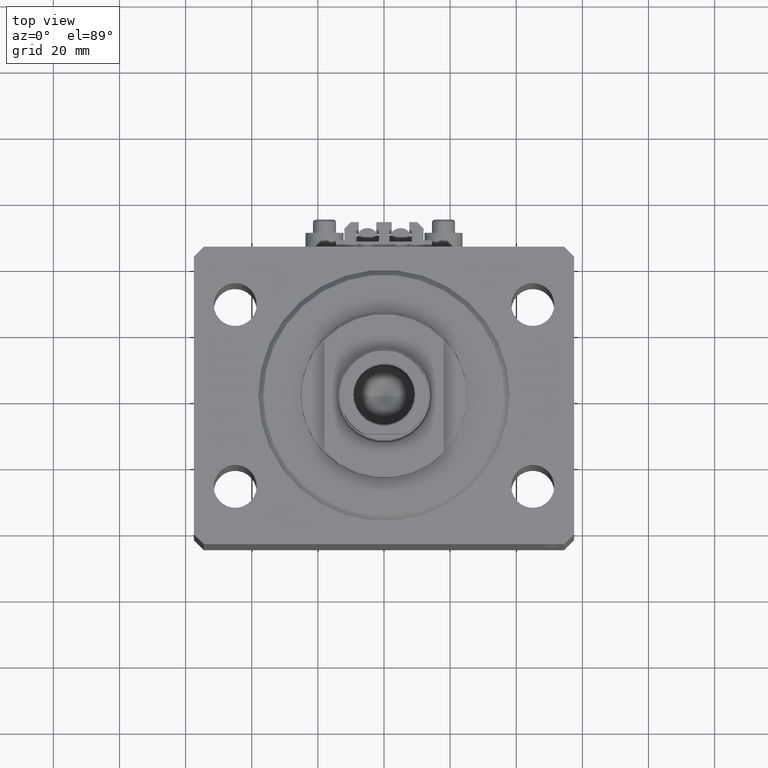
[diagram: clean part render]
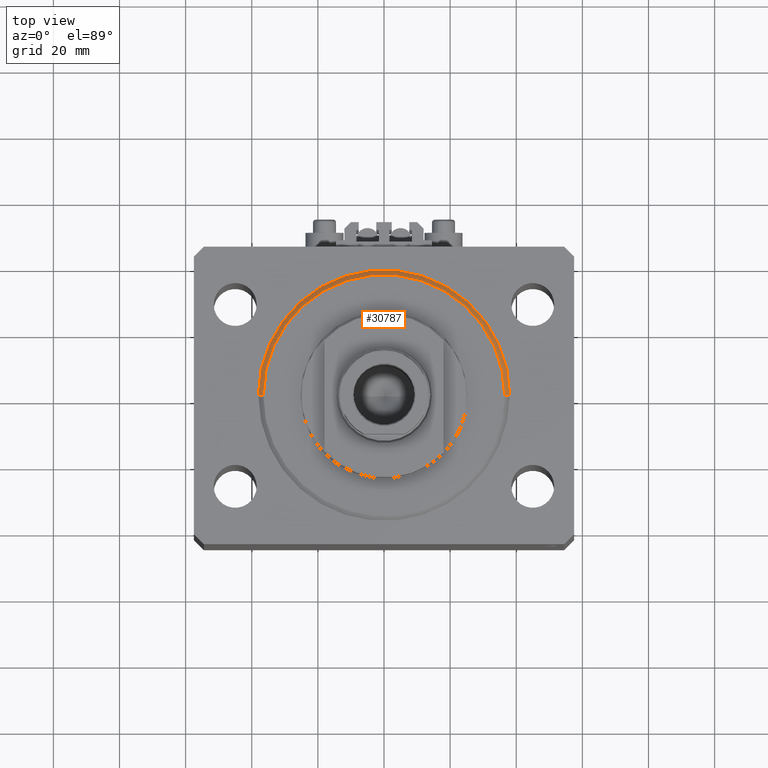
[diagram: same view with one face highlighted and labeled with its STEP entity id]
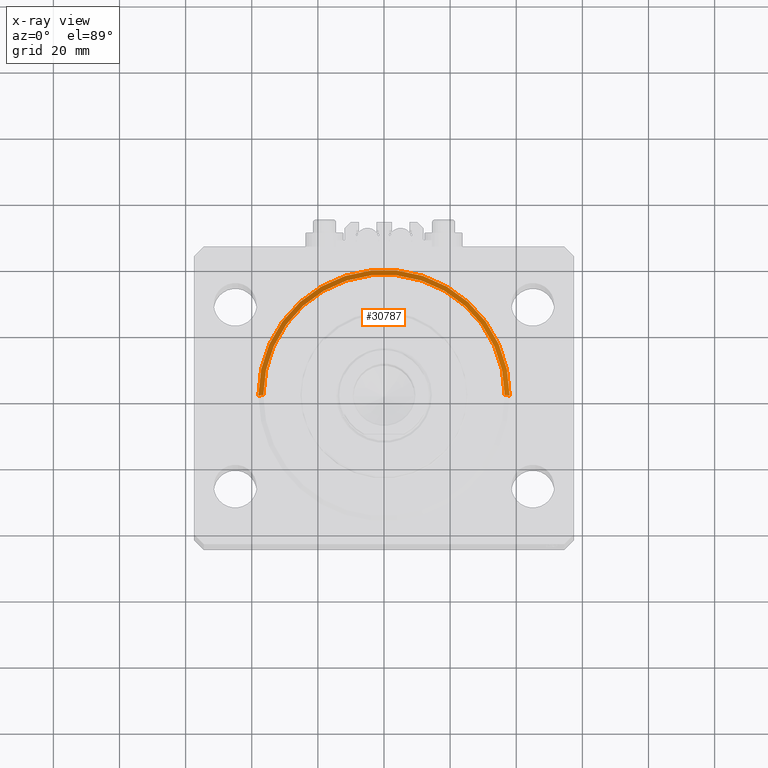
[diagram: x-ray of the same camera — body ghosted, the highlighted face saturated]
A machine part, top view. The second image highlights one B-rep face of the part: STEP entity #30787.
The next image is the same camera in x-ray: the body ghosted, the highlighted face saturated — about 0% of this face is hidden behind the body in this view.
In plain terms, the highlighted conical surface has half-angle 45 deg.
Its self-contained STEP definition (entity closure, byte-faithful):
#119 = ORIENTED_EDGE ( 'NONE', *, *, #35915, .F. ) ;
#1730 = DIRECTION ( 'NONE',  ( 1.000000000000000000, 0.000000000000000000, 0.000000000000000000 ) ) ;
#2541 = VECTOR ( 'NONE', #7786, 1000.000000000000114 ) ;
#2602 = VERTEX_POINT ( 'NONE', #3045 ) ;
#2927 = VERTEX_POINT ( 'NONE', #26331 ) ;
#3045 = CARTESIAN_POINT ( 'NONE',  ( -38.00000000000000000, 0.000000000000000000, 1.499999999999994449 ) ) ;
#3762 = DIRECTION ( 'NONE',  ( 1.000000000000000000, 0.000000000000000000, 0.000000000000000000 ) ) ;
#4466 = CARTESIAN_POINT ( 'NONE',  ( 36.50000000000000000, 0.000000000000000000, 0.000000000000000000 ) ) ;
#7786 = DIRECTION ( 'NONE',  ( -0.7071067811865491270, 8.659560562354953812E-17, 0.7071067811865459074 ) ) ;
#9042 = LINE ( 'NONE', #23885, #21356 ) ;
#9096 = DIRECTION ( 'NONE',  ( 1.000000000000000000, 0.000000000000000000, 0.000000000000000000 ) ) ;
#10408 = EDGE_CURVE ( 'NONE', #39826, #2602, #33163, .T. ) ;
#12166 = AXIS2_PLACEMENT_3D ( 'NONE', #22972, #26621, #3762 ) ;
#12694 = DIRECTION ( 'NONE',  ( -0.000000000000000000, -0.000000000000000000, 1.000000000000000000 ) ) ;
#13207 = CARTESIAN_POINT ( 'NONE',  ( 0.000000000000000000, 0.000000000000000000, 0.000000000000000000 ) ) ;
#14835 = CARTESIAN_POINT ( 'NONE',  ( 38.00000000000000000, 4.653657836759941941E-15, 1.499999999999994449 ) ) ;
#20669 = ORIENTED_EDGE ( 'NONE', *, *, #10408, .F. ) ;
#21032 = CIRCLE ( 'NONE', #38946, 36.50000000000000000 ) ;
#21356 = VECTOR ( 'NONE', #38751, 1000.000000000000114 ) ;
#22972 = CARTESIAN_POINT ( 'NONE',  ( 0.000000000000000000, 0.000000000000000000, 1.499999999999994449 ) ) ;
#23885 = CARTESIAN_POINT ( 'NONE',  ( 38.00000000000000000, 0.000000000000000000, 1.499999999999994449 ) ) ;
#23895 = FACE_OUTER_BOUND ( 'NONE', #33890, .T. ) ;
#24103 = ORIENTED_EDGE ( 'NONE', *, *, #43922, .T. ) ;
#26288 = LINE ( 'NONE', #41131, #2541 ) ;
#26331 = CARTESIAN_POINT ( 'NONE',  ( -36.50000000000000000, 4.561809326823889791E-15, 0.000000000000000000 ) ) ;
#26621 = DIRECTION ( 'NONE',  ( -0.000000000000000000, -0.000000000000000000, 1.000000000000000000 ) ) ;
#30787 = ADVANCED_FACE ( 'NONE', ( #23895 ), #38193, .T. ) ;
#33163 = CIRCLE ( 'NONE', #12166, 38.00000000000000000 ) ;
#33890 = EDGE_LOOP ( 'NONE', ( #119, #24103, #20669, #38747 ) ) ;
#35094 = CARTESIAN_POINT ( 'NONE',  ( 0.000000000000000000, 0.000000000000000000, 1.499999999999994449 ) ) ;
#35915 = EDGE_CURVE ( 'NONE', #2927, #45870, #21032, .T. ) ;
#37698 = EDGE_CURVE ( 'NONE', #45870, #39826, #9042, .T. ) ;
#38193 = CONICAL_SURFACE ( 'NONE', #39015, 38.00000000000000000, 0.7853981633974506105 ) ;
#38747 = ORIENTED_EDGE ( 'NONE', *, *, #37698, .F. ) ;
#38751 = DIRECTION ( 'NONE',  ( 0.7071067811865491270, 0.000000000000000000, 0.7071067811865459074 ) ) ;
#38946 = AXIS2_PLACEMENT_3D ( 'NONE', #13207, #46570, #9096 ) ;
#39015 = AXIS2_PLACEMENT_3D ( 'NONE', #35094, #12694, #1730 ) ;
#39826 = VERTEX_POINT ( 'NONE', #14835 ) ;
#41131 = CARTESIAN_POINT ( 'NONE',  ( -38.00000000000000000, 4.653657836759941941E-15, 1.499999999999994449 ) ) ;
#43922 = EDGE_CURVE ( 'NONE', #2927, #2602, #26288, .T. ) ;
#45870 = VERTEX_POINT ( 'NONE', #4466 ) ;
#46570 = DIRECTION ( 'NONE',  ( -0.000000000000000000, -0.000000000000000000, -1.000000000000000000 ) ) ;